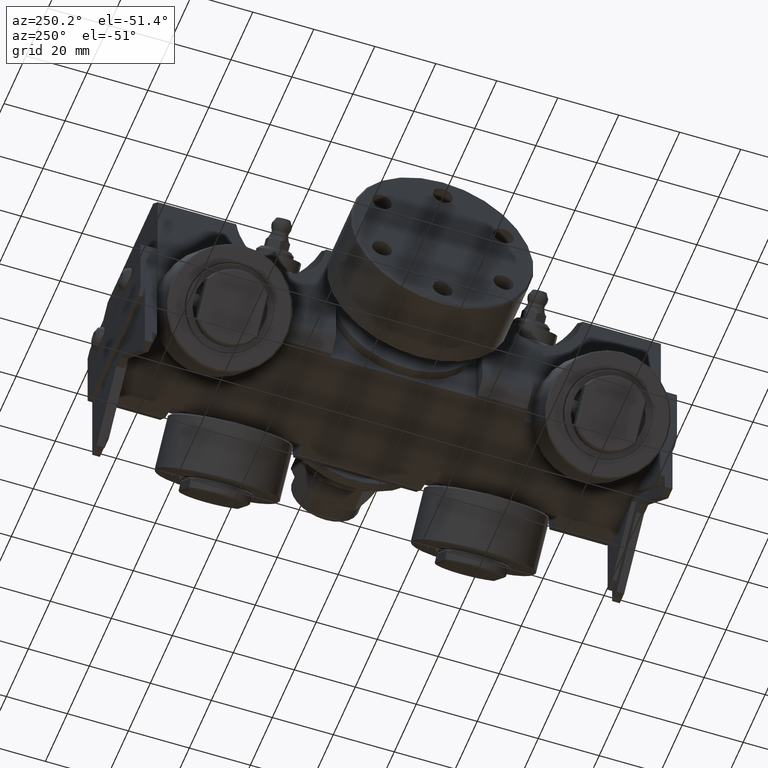
[diagram: clean part render]
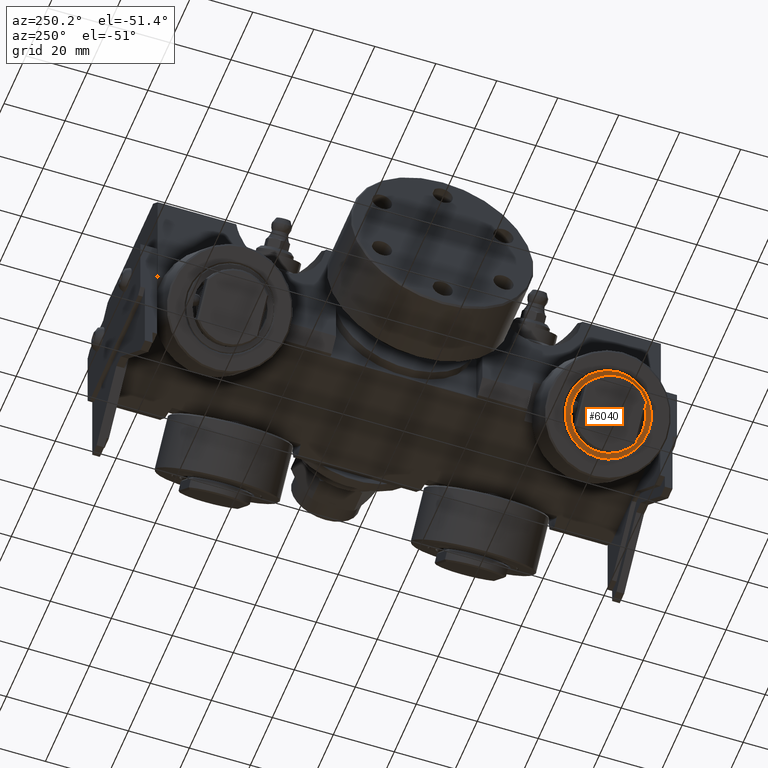
[diagram: same view with one face highlighted and labeled with its STEP entity id]
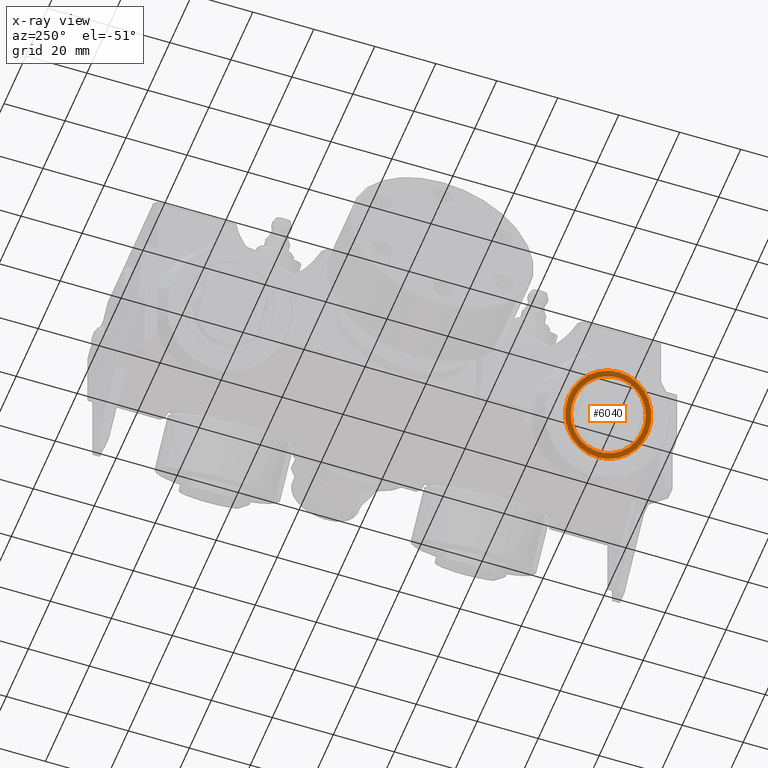
[diagram: x-ray of the same camera — body ghosted, the highlighted face saturated]
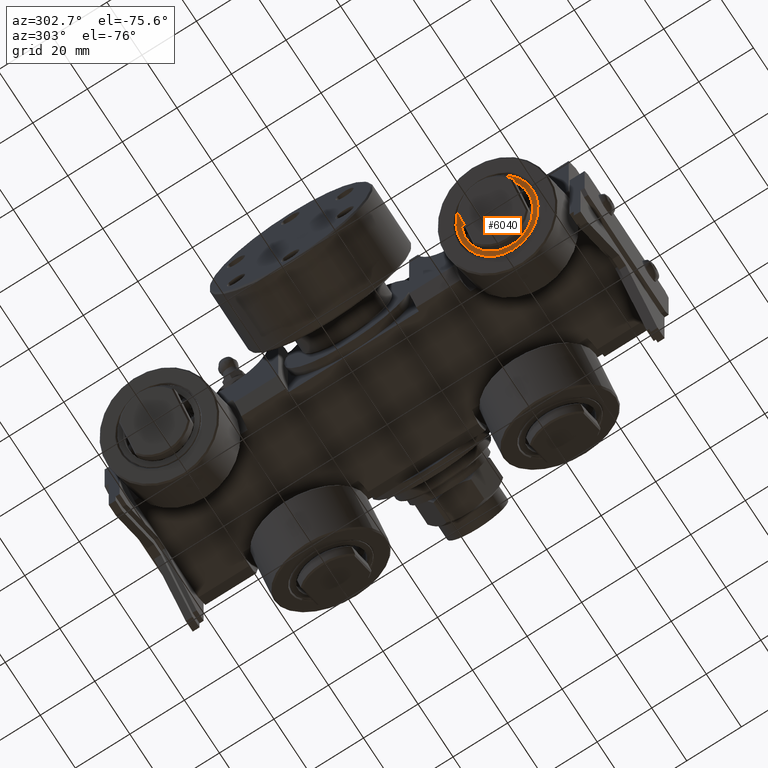
[diagram: same view with one face highlighted and labeled with its STEP entity id]
A machine part, auxiliary view. The second image highlights one B-rep face of the part: STEP entity #6040.
The next image is the same camera in x-ray: the body ghosted, the highlighted face saturated — about 0% of this face is hidden behind the body in this view.
A second angle (auxiliary view) of the same face is appended — the face is thin or edge-on in the first view.
In plain terms, the highlighted planar face has unit normal (-0.7071, 0, -0.7071).
Its self-contained STEP definition (entity closure, byte-faithful):
#426=FACE_BOUND('',#1124,.T.);
#547=PLANE('',#6952);
#762=FACE_OUTER_BOUND('',#1123,.T.);
#1123=EDGE_LOOP('',(#4667));
#1124=EDGE_LOOP('',(#4668));
#1524=CIRCLE('',#6948,13.7);
#1527=CIRCLE('',#6953,11.92);
#2764=VERTEX_POINT('',#10683);
#2767=VERTEX_POINT('',#10693);
#3467=EDGE_CURVE('',#2764,#2764,#1524,.T.);
#3471=EDGE_CURVE('',#2767,#2767,#1527,.T.);
#4667=ORIENTED_EDGE('',*,*,#3467,.F.);
#4668=ORIENTED_EDGE('',*,*,#3471,.T.);
#6040=ADVANCED_FACE('',(#762,#426),#547,.T.);
#6948=AXIS2_PLACEMENT_3D('',#10685,#8092,#8093);
#6952=AXIS2_PLACEMENT_3D('',#10692,#8101,#8102);
#6953=AXIS2_PLACEMENT_3D('',#10694,#8103,#8104);
#8092=DIRECTION('center_axis',(0.,0.,1.));
#8093=DIRECTION('ref_axis',(-1.22464679914735E-16,-1.,0.));
#8101=DIRECTION('center_axis',(0.,0.,-1.));
#8102=DIRECTION('ref_axis',(-1.,0.,0.));
#8103=DIRECTION('center_axis',(0.,0.,1.));
#8104=DIRECTION('ref_axis',(0.,1.,-1.62945548114914E-16));
#10683=CARTESIAN_POINT('',(-13.7,-1.67776611483187E-15,-8.32667268468867E-16));
#10685=CARTESIAN_POINT('Origin',(0.,0.,-8.32667268468867E-16));
#10692=CARTESIAN_POINT('Origin',(0.,10.75,-8.48749079253945E-16));
#10693=CARTESIAN_POINT('',(1.45977898458365E-15,-11.92,-8.32667268468867E-16));
#10694=CARTESIAN_POINT('Origin',(0.,0.,-8.32667268468867E-16));